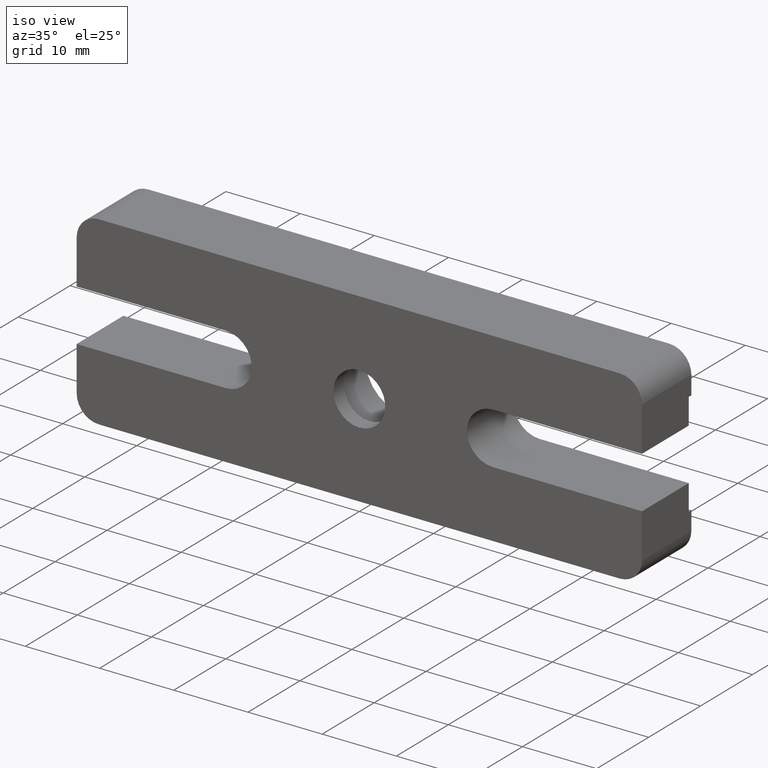
[diagram: clean part render]
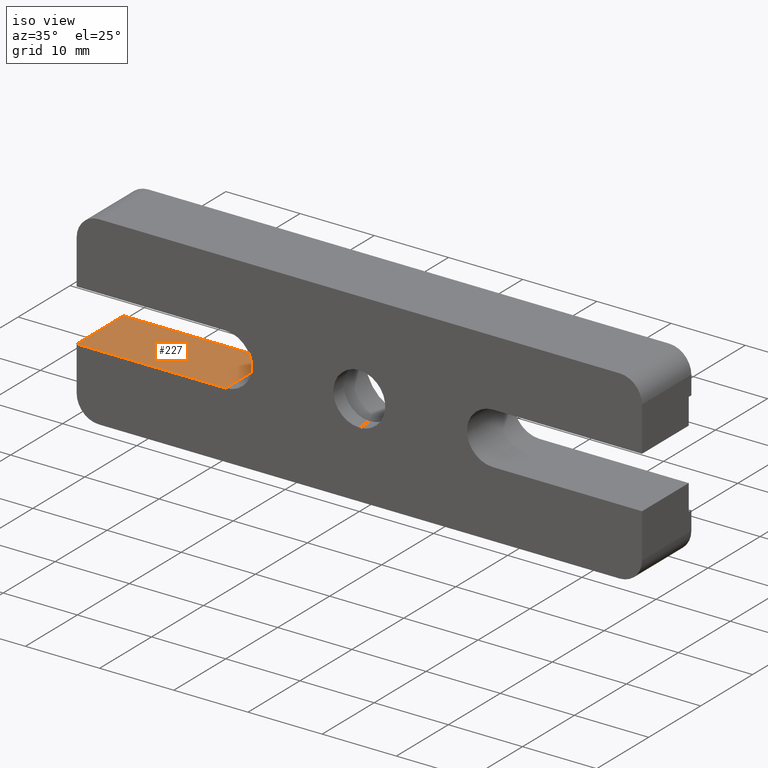
[diagram: same view with one face highlighted and labeled with its STEP entity id]
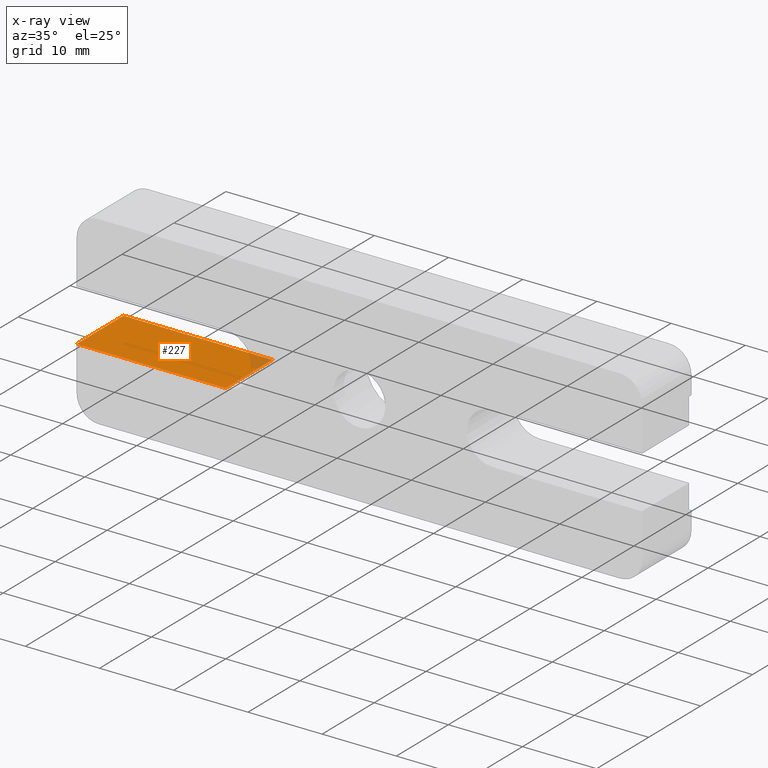
[diagram: x-ray of the same camera — body ghosted, the highlighted face saturated]
A machine part, iso view. The second image highlights one B-rep face of the part: STEP entity #227.
The next image is the same camera in x-ray: the body ghosted, the highlighted face saturated — about 3% of this face is hidden behind the body in this view.
In plain terms, the highlighted planar face has unit normal (0, 0, -1).
Its self-contained STEP definition (entity closure, byte-faithful):
#9 = EDGE_CURVE ( 'NONE', #792, #239, #513, .T. ) ;
#10 = VECTOR ( 'NONE', #295, 1000.000000000000000 ) ;
#24 = CARTESIAN_POINT ( 'NONE',  ( -38.10000000000013600, 0.0000000000000000000, -3.500000000000014200 ) ) ;
#73 = FACE_OUTER_BOUND ( 'NONE', #880, .T. ) ;
#85 = ORIENTED_EDGE ( 'NONE', *, *, #651, .T. ) ;
#93 = EDGE_CURVE ( 'NONE', #792, #766, #574, .T. ) ;
#125 = VECTOR ( 'NONE', #136, 1000.000000000000000 ) ;
#136 = DIRECTION ( 'NONE',  ( -0.0000000000000000000, -1.000000000000000000, -0.0000000000000000000 ) ) ;
#137 = CARTESIAN_POINT ( 'NONE',  ( -38.10000000000013600, 9.500000000000000000, -3.500000000000014200 ) ) ;
#162 = VECTOR ( 'NONE', #801, 1000.000000000000000 ) ;
#189 = CARTESIAN_POINT ( 'NONE',  ( -62.51947198304053200, 0.0000000000000000000, -3.500000000000027500 ) ) ;
#227 = ADVANCED_FACE ( 'NONE', ( #73 ), #805, .F. ) ;
#238 = DIRECTION ( 'NONE',  ( -1.000000000000000000, 0.0000000000000000000, -5.394040659131827300E-016 ) ) ;
#239 = VERTEX_POINT ( 'NONE', #24 ) ;
#287 = LINE ( 'NONE', #447, #162 ) ;
#295 = DIRECTION ( 'NONE',  ( 1.000000000000000000, -0.0000000000000000000, 5.394040659131827300E-016 ) ) ;
#301 = CARTESIAN_POINT ( 'NONE',  ( -18.00000000000000400, 0.0000000000000000000, -3.500000000000003600 ) ) ;
#304 = CARTESIAN_POINT ( 'NONE',  ( -62.51947198304053200, 9.500000000000000000, -3.500000000000027500 ) ) ;
#306 = ORIENTED_EDGE ( 'NONE', *, *, #9, .T. ) ;
#324 = DIRECTION ( 'NONE',  ( 1.000000000000000000, 0.0000000000000000000, 5.394040659131827300E-016 ) ) ;
#389 = CARTESIAN_POINT ( 'NONE',  ( -38.10000000000007200, 9.000000000000000000, -3.500000000000009300 ) ) ;
#447 = CARTESIAN_POINT ( 'NONE',  ( -18.00000000000000400, 9.500000000000000000, -3.500000000000003600 ) ) ;
#456 = ORIENTED_EDGE ( 'NONE', *, *, #93, .F. ) ;
#511 = VECTOR ( 'NONE', #324, 1000.000000000000000 ) ;
#513 = LINE ( 'NONE', #137, #125 ) ;
#540 = VERTEX_POINT ( 'NONE', #301 ) ;
#551 = CARTESIAN_POINT ( 'NONE',  ( -18.00000000000000400, 9.000000000000000000, -3.500000000000003600 ) ) ;
#574 = LINE ( 'NONE', #708, #10 ) ;
#595 = DIRECTION ( 'NONE',  ( 5.394040659131827300E-016, 0.0000000000000000000, -1.000000000000000000 ) ) ;
#651 = EDGE_CURVE ( 'NONE', #239, #540, #894, .T. ) ;
#686 = ORIENTED_EDGE ( 'NONE', *, *, #928, .F. ) ;
#708 = CARTESIAN_POINT ( 'NONE',  ( -62.51947198304053200, 9.000000000000000000, -3.500000000000027500 ) ) ;
#766 = VERTEX_POINT ( 'NONE', #551 ) ;
#792 = VERTEX_POINT ( 'NONE', #389 ) ;
#801 = DIRECTION ( 'NONE',  ( -0.0000000000000000000, -1.000000000000000000, -0.0000000000000000000 ) ) ;
#805 = PLANE ( 'NONE',  #809 ) ;
#809 = AXIS2_PLACEMENT_3D ( 'NONE', #304, #595, #238 ) ;
#880 = EDGE_LOOP ( 'NONE', ( #456, #306, #85, #686 ) ) ;
#894 = LINE ( 'NONE', #189, #511 ) ;
#928 = EDGE_CURVE ( 'NONE', #766, #540, #287, .T. ) ;